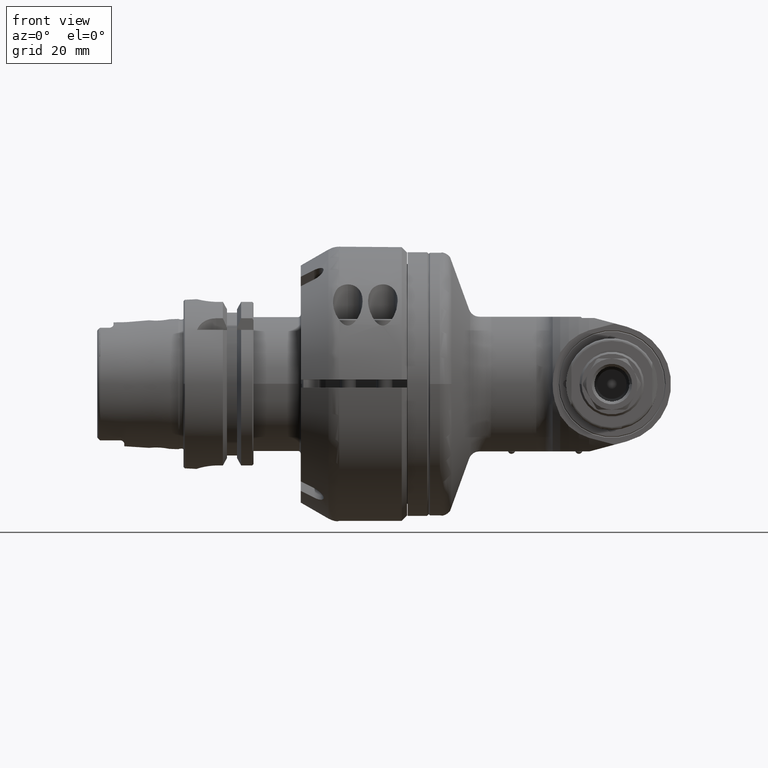
[diagram: clean part render]
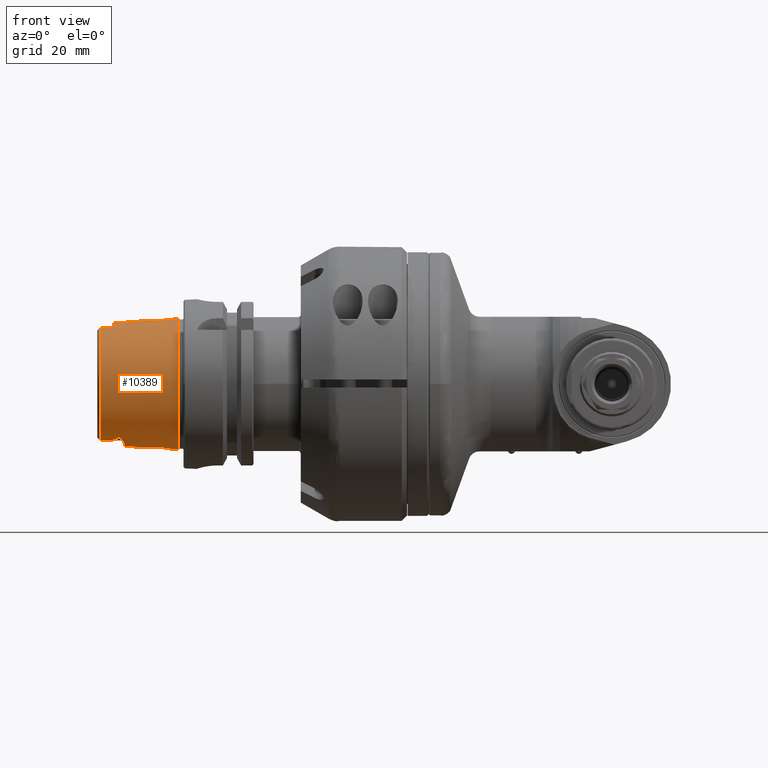
[diagram: same view with one face highlighted and labeled with its STEP entity id]
A machine part, front view. The second image highlights one B-rep face of the part: STEP entity #10389.
In plain terms, the highlighted conical surface has half-angle 2.868 deg.
Its self-contained STEP definition (entity closure, byte-faithful):
#144=B_SPLINE_CURVE_WITH_KNOTS('',3,(#17776,#17777,#17778,#17779,#17780,
#17781,#17782,#17783),.UNSPECIFIED.,.F.,.F.,(4,2,2,4),(1.87852144760714,
1.96332966499537,2.14651647101209,2.20196364531662),.UNSPECIFIED.);
#145=B_SPLINE_CURVE_WITH_KNOTS('',3,(#17785,#17786,#17787,#17788,#17789,
#17790,#17791,#17792,#17793,#17794,#17795,#17796,#17797,#17798),
 .UNSPECIFIED.,.F.,.F.,(4,2,2,2,2,2,4),(0.648088302085367,0.675048238791918,
0.706405860352609,0.74703144233428,0.813706573923411,0.931756672705519,
0.968140813905527),.UNSPECIFIED.);
#146=B_SPLINE_CURVE_WITH_KNOTS('',3,(#17802,#17803,#17804,#17805,#17806,
#17807,#17808,#17809,#17810,#17811,#17812,#17813,#17814,#17815),
 .UNSPECIFIED.,.F.,.F.,(4,2,2,2,2,2,4),(0.250897982794805,0.322899286399055,
0.451677279406565,0.50403853169686,0.537850831836068,0.567600566613743,
0.582022119256568),.UNSPECIFIED.);
#147=B_SPLINE_CURVE_WITH_KNOTS('',3,(#17817,#17818,#17819,#17820,#17821,
#17822,#17823,#17824),.UNSPECIFIED.,.F.,.F.,(4,2,2,4),(1.04367366398559,
1.09912083762025,1.28230764389029,1.36711586171919),.UNSPECIFIED.);
#148=B_SPLINE_CURVE_WITH_KNOTS('',3,(#17828,#17829,#17830,#17831,#17832,
#17833,#17834,#17835,#17836,#17837,#17838,#17839,#17840,#17841,#17842,#17843,
#17844,#17845),.UNSPECIFIED.,.F.,.F.,(4,2,2,2,2,2,2,2,4),(1.62281865268316,
1.63031260903777,1.63780656539237,1.65279447810159,1.71646866782222,1.78014285754286,
1.96332966286606,2.14651646818926,2.20196364304312),.UNSPECIFIED.);
#149=B_SPLINE_CURVE_WITH_KNOTS('',3,(#17851,#17852,#17853,#17854,#17855,
#17856,#17857,#17858,#17859,#17860,#17861,#17862,#17863,#17864,#17865,#17866,
#17867,#17868,#17869),.UNSPECIFIED.,.F.,.F.,(4,2,2,2,2,2,3,2,4),(0.591686858486119,
0.711318405574479,0.753394480811399,0.769620085407919,0.779298074344639,
0.784137068813,0.78897606328136,0.793827590149413,0.796896752134967),
 .UNSPECIFIED.);
#150=B_SPLINE_CURVE_WITH_KNOTS('',3,(#17871,#17872,#17873,#17874,#17875,
#17876,#17877,#17878,#17879,#17880,#17881,#17882),.UNSPECIFIED.,.F.,.F.,
(4,2,2,2,2,4),(-1.35810253273556,-1.33001864996105,-1.27929112227655,-1.22120743999306,
-1.19655389715645,-1.18646391720584),.UNSPECIFIED.);
#151=B_SPLINE_CURVE_WITH_KNOTS('',3,(#17886,#17887,#17888,#17889,#17890,
#17891,#17892,#17893,#17894,#17895),.UNSPECIFIED.,.F.,.F.,(4,2,2,2,4),(-0.500911046831581,
-0.481998817135151,-0.442781745818096,-0.333902719664991,-0.278648797669768),
 .UNSPECIFIED.);
#152=B_SPLINE_CURVE_WITH_KNOTS('',3,(#17897,#17898,#17899,#17900,#17901,
#17902,#17903,#17904,#17905,#17906,#17907,#17908,#17909,#17910,#17911,#17912,
#17913,#17914),.UNSPECIFIED.,.F.,.F.,(4,2,2,2,2,2,2,2,4),(0.386476945536789,
0.389546107522341,0.394397634390394,0.399236628858755,0.404075623327115,
0.413753612263837,0.429979216860358,0.472055292097276,0.591686839185636),
 .UNSPECIFIED.);
#153=B_SPLINE_CURVE_WITH_KNOTS('',3,(#17920,#17921,#17922,#17923,#17924,
#17925,#17926,#17927,#17928,#17929,#17930,#17931,#17932,#17933,#17934,#17935,
#17936,#17937),.UNSPECIFIED.,.F.,.F.,(4,2,2,2,2,2,2,2,4),(1.04367366561104,
1.09912083861657,1.2823076446389,1.46549445066122,1.5291686406059,1.59284283055058,
1.60783074329144,1.61532469966187,1.6228186560323),.UNSPECIFIED.);
#154=B_SPLINE_CURVE_WITH_KNOTS('',3,(#17941,#17942,#17943,#17944,#17945,
#17946,#17947,#17948,#17949,#17950,#17951,#17952,#17953,#17954,#17955,#17956,
#17957,#17958,#17959),.UNSPECIFIED.,.F.,.F.,(4,2,2,2,3,2,2,2,4),(-0.56247523473426,
-0.421758779612593,-0.281042324490925,-0.140521162245463,0.,0.142680728235708,
0.285361456471416,0.427838019281762,0.570314582092107),.UNSPECIFIED.);
#155=B_SPLINE_CURVE_WITH_KNOTS('',3,(#17960,#17961,#17962,#17963,#17964,
#17965,#17966,#17967,#17968,#17969,#17970,#17971,#17972,#17973,#17974,#17975,
#17976,#17977),.UNSPECIFIED.,.F.,.F.,(4,2,2,2,2,2,2,2,4),(0.570314582092107,
0.712791144902453,0.855267707712798,0.997948435948506,1.14062916418421,
1.28115032642968,1.42167148867514,1.56238794379681,1.70310439891847),
 .UNSPECIFIED.);
#156=B_SPLINE_CURVE_WITH_KNOTS('',3,(#17979,#17980,#17981,#17982,#17983,
#17984,#17985,#17986,#17987,#17988,#17989,#17990,#17991,#17992,#17993,#17994,
#17995,#17996,#17997,#17998,#17999,#18000,#18001,#18002,#18003,#18004,#18005,
#18006,#18007,#18008,#18009,#18010,#18011,#18012),.UNSPECIFIED.,.T.,.F.,
(4,2,2,2,2,2,2,2,2,2,2,2,2,2,2,2,4),(-2.26557963365273,-2.12505847140727,
-1.98453730916181,-1.84382085404014,-1.70310439891847,-1.56238794379681,
-1.42167148867514,-1.28115032642968,-1.14062916418421,-0.997948435948507,
-0.855267707712798,-0.712791144902453,-0.570314582092107,-0.427838019281762,
-0.285361456471416,-0.142680728235708,0.),.UNSPECIFIED.);
#381=(
BOUNDED_CURVE()
B_SPLINE_CURVE(2,(#17847,#17848,#17849),.UNSPECIFIED.,.F.,.F.)
B_SPLINE_CURVE_WITH_KNOTS((3,3),(1.86693789051421,2.5252025093279),
 .UNSPECIFIED.)
CURVE()
GEOMETRIC_REPRESENTATION_ITEM()
RATIONAL_B_SPLINE_CURVE((1.02439092202946,1.02616919741191,1.02616919750134))
REPRESENTATION_ITEM('')
);
#382=(
BOUNDED_CURVE()
B_SPLINE_CURVE(2,(#17916,#17917,#17918),.UNSPECIFIED.,.F.,.F.)
B_SPLINE_CURVE_WITH_KNOTS((3,3),(2.52520257553613,3.18346719434885),
 .UNSPECIFIED.)
CURVE()
GEOMETRIC_REPRESENTATION_ITEM()
RATIONAL_B_SPLINE_CURVE((1.02616919750134,1.0261691974119,1.02439092202946))
REPRESENTATION_ITEM('')
);
#495=FACE_BOUND('',#3178,.T.);
#496=FACE_BOUND('',#3179,.T.);
#620=CONICAL_SURFACE('',#11556,23.49739340079,0.0500570901447486);
#1060=LINE('',#17772,#1717);
#1717=VECTOR('',#13825,23.49739340079);
#2501=FACE_OUTER_BOUND('',#3177,.T.);
#3177=EDGE_LOOP('',(#8260,#8261,#8262,#8263,#8264,#8265,#8266,#8267,#8268,
#8269,#8270,#8271,#8272,#8273,#8274,#8275,#8276,#8277,#8278,#8279,#8280));
#3178=EDGE_LOOP('',(#8281,#8282));
#3179=EDGE_LOOP('',(#8283));
#3781=CIRCLE('',#11554,24.22021898401);
#3782=CIRCLE('',#11555,24.22021898401);
#3783=CIRCLE('',#11557,22.77456781756);
#3784=CIRCLE('',#11558,23.01805084955);
#3785=CIRCLE('',#11559,22.77456781756);
#3786=CIRCLE('',#11560,23.21844661614);
#3787=CIRCLE('',#11561,22.77456781756);
#4587=VERTEX_POINT('',#17765);
#4588=VERTEX_POINT('',#17766);
#4589=VERTEX_POINT('',#17771);
#4590=VERTEX_POINT('',#17773);
#4591=VERTEX_POINT('',#17775);
#4592=VERTEX_POINT('',#17784);
#4593=VERTEX_POINT('',#17799);
#4594=VERTEX_POINT('',#17801);
#4595=VERTEX_POINT('',#17816);
#4596=VERTEX_POINT('',#17825);
#4597=VERTEX_POINT('',#17827);
#4598=VERTEX_POINT('',#17846);
#4599=VERTEX_POINT('',#17850);
#4600=VERTEX_POINT('',#17870);
#4601=VERTEX_POINT('',#17883);
#4602=VERTEX_POINT('',#17885);
#4603=VERTEX_POINT('',#17896);
#4604=VERTEX_POINT('',#17915);
#4605=VERTEX_POINT('',#17919);
#4606=VERTEX_POINT('',#17939);
#4607=VERTEX_POINT('',#17940);
#4608=VERTEX_POINT('',#17978);
#5875=EDGE_CURVE('',#4587,#4588,#3781,.T.);
#5876=EDGE_CURVE('',#4588,#4587,#3782,.T.);
#5878=EDGE_CURVE('',#4587,#4589,#1060,.T.);
#5879=EDGE_CURVE('',#4589,#4590,#3783,.T.);
#5880=EDGE_CURVE('',#4591,#4590,#144,.T.);
#5881=EDGE_CURVE('',#4591,#4592,#145,.T.);
#5882=EDGE_CURVE('',#4593,#4592,#3784,.T.);
#5883=EDGE_CURVE('',#4593,#4594,#146,.T.);
#5884=EDGE_CURVE('',#4595,#4594,#147,.T.);
#5885=EDGE_CURVE('',#4596,#4595,#3785,.T.);
#5886=EDGE_CURVE('',#4597,#4596,#148,.T.);
#5887=EDGE_CURVE('',#4598,#4597,#381,.T.);
#5888=EDGE_CURVE('',#4599,#4598,#149,.T.);
#5889=EDGE_CURVE('',#4600,#4599,#150,.T.);
#5890=EDGE_CURVE('',#4601,#4600,#3786,.T.);
#5891=EDGE_CURVE('',#4602,#4601,#151,.T.);
#5892=EDGE_CURVE('',#4603,#4602,#152,.T.);
#5893=EDGE_CURVE('',#4604,#4603,#382,.T.);
#5894=EDGE_CURVE('',#4605,#4604,#153,.T.);
#5895=EDGE_CURVE('',#4605,#4589,#3787,.T.);
#5896=EDGE_CURVE('',#4606,#4607,#154,.T.);
#5897=EDGE_CURVE('',#4607,#4606,#155,.T.);
#5898=EDGE_CURVE('',#4608,#4608,#156,.T.);
#8260=ORIENTED_EDGE('',*,*,#5875,.T.);
#8261=ORIENTED_EDGE('',*,*,#5876,.T.);
#8262=ORIENTED_EDGE('',*,*,#5878,.T.);
#8263=ORIENTED_EDGE('',*,*,#5879,.T.);
#8264=ORIENTED_EDGE('',*,*,#5880,.F.);
#8265=ORIENTED_EDGE('',*,*,#5881,.T.);
#8266=ORIENTED_EDGE('',*,*,#5882,.F.);
#8267=ORIENTED_EDGE('',*,*,#5883,.T.);
#8268=ORIENTED_EDGE('',*,*,#5884,.F.);
#8269=ORIENTED_EDGE('',*,*,#5885,.F.);
#8270=ORIENTED_EDGE('',*,*,#5886,.F.);
#8271=ORIENTED_EDGE('',*,*,#5887,.F.);
#8272=ORIENTED_EDGE('',*,*,#5888,.F.);
#8273=ORIENTED_EDGE('',*,*,#5889,.F.);
#8274=ORIENTED_EDGE('',*,*,#5890,.F.);
#8275=ORIENTED_EDGE('',*,*,#5891,.F.);
#8276=ORIENTED_EDGE('',*,*,#5892,.F.);
#8277=ORIENTED_EDGE('',*,*,#5893,.F.);
#8278=ORIENTED_EDGE('',*,*,#5894,.F.);
#8279=ORIENTED_EDGE('',*,*,#5895,.T.);
#8280=ORIENTED_EDGE('',*,*,#5878,.F.);
#8281=ORIENTED_EDGE('',*,*,#5896,.T.);
#8282=ORIENTED_EDGE('',*,*,#5897,.T.);
#8283=ORIENTED_EDGE('',*,*,#5898,.T.);
#10389=ADVANCED_FACE('',(#2501,#495,#496),#620,.T.);
#11554=AXIS2_PLACEMENT_3D('',#17767,#13818,#13819);
#11555=AXIS2_PLACEMENT_3D('',#17768,#13820,#13821);
#11556=AXIS2_PLACEMENT_3D('',#17770,#13823,#13824);
#11557=AXIS2_PLACEMENT_3D('',#17774,#13826,#13827);
#11558=AXIS2_PLACEMENT_3D('',#17800,#13828,#13829);
#11559=AXIS2_PLACEMENT_3D('',#17826,#13830,#13831);
#11560=AXIS2_PLACEMENT_3D('',#17884,#13832,#13833);
#11561=AXIS2_PLACEMENT_3D('',#17938,#13834,#13835);
#13818=DIRECTION('center_axis',(0.,0.,1.));
#13819=DIRECTION('ref_axis',(-0.707106781186547,-0.707106781186547,0.));
#13820=DIRECTION('center_axis',(0.,0.,1.));
#13821=DIRECTION('ref_axis',(-0.707106781186547,-0.707106781186547,0.));
#13823=DIRECTION('center_axis',(0.,0.,-1.));
#13824=DIRECTION('ref_axis',(0.707106781186548,0.707106781186548,0.));
#13825=DIRECTION('',(0.0353809278297194,0.0353809278297194,0.998747405449354));
#13826=DIRECTION('center_axis',(0.,0.,-1.));
#13827=DIRECTION('ref_axis',(-0.707106781186547,-0.707106781186547,0.));
#13828=DIRECTION('center_axis',(0.,0.,1.));
#13829=DIRECTION('ref_axis',(0.310247952795186,0.950655672568357,0.));
#13830=DIRECTION('center_axis',(0.,0.,1.));
#13831=DIRECTION('ref_axis',(1.,0.,0.));
#13832=DIRECTION('center_axis',(0.,0.,1.));
#13833=DIRECTION('ref_axis',(-0.318847860778003,-0.94780590928591,0.));
#13834=DIRECTION('center_axis',(0.,0.,-1.));
#13835=DIRECTION('ref_axis',(-0.707106781186547,-0.707106781186547,0.));
#17765=CARTESIAN_POINT('',(-17.12628108542,-17.12628108542,52.99912114642));
#17766=CARTESIAN_POINT('',(17.1262810854204,17.1262810854204,52.9991211464186));
#17767=CARTESIAN_POINT('Origin',(0.,0.,52.99912114642));
#17768=CARTESIAN_POINT('Origin',(0.,0.,52.99912114642));
#17770=CARTESIAN_POINT('Origin',(0.,0.,67.427082286));
#17771=CARTESIAN_POINT('',(-16.1040513423943,-16.1040513423943,81.8550434255811));
#17772=CARTESIAN_POINT('',(-16.6151662139066,-16.6151662139066,67.427082286));
#17773=CARTESIAN_POINT('',(-9.117654363463,20.86981835535,81.85504342558));
#17774=CARTESIAN_POINT('Origin',(0.,0.,81.85504342558));
#17775=CARTESIAN_POINT('',(-9.610775788882,20.83290092553,78.495));
#17776=CARTESIAN_POINT('Ctrl Pts',(-9.61077578889373,20.8329009255282,78.4950000000022));
#17777=CARTESIAN_POINT('Ctrl Pts',(-9.55850786932113,20.8413724806425,78.7784904282741));
#17778=CARTESIAN_POINT('Ctrl Pts',(-9.50986699995181,20.8478073405863,79.0652482027057));
#17779=CARTESIAN_POINT('Ctrl Pts',(-9.36366646758571,20.863821774484,79.9801565585002));
#17780=CARTESIAN_POINT('Ctrl Pts',(-9.27459532051356,20.8685085877053,80.6183430761416));
#17781=CARTESIAN_POINT('Ctrl Pts',(-9.16631082824764,20.8700624475187,81.4611270539247));
#17782=CARTESIAN_POINT('Ctrl Pts',(-9.14172559906328,20.8700887194267,81.6577434629838));
#17783=CARTESIAN_POINT('Ctrl Pts',(-9.11765436347179,20.8698183553477,81.8550434255811));
#17784=CARTESIAN_POINT('',(-7.141303153407,21.88224061159,76.995));
#17785=CARTESIAN_POINT('Ctrl Pts',(-9.61077578889373,20.8329009255283,78.4950000000022));
#17786=CARTESIAN_POINT('Ctrl Pts',(-9.61973394568024,20.8314489924963,78.4464128030236));
#17787=CARTESIAN_POINT('Ctrl Pts',(-9.62073721834895,20.8336401790428,78.3983101102748));
#17788=CARTESIAN_POINT('Ctrl Pts',(-9.60554521151347,20.8464278881812,78.2935608657479));
#17789=CARTESIAN_POINT('Ctrl Pts',(-9.58707640182997,20.8578578636761,78.240706969117));
#17790=CARTESIAN_POINT('Ctrl Pts',(-9.53199317457096,20.8893183107881,78.1277996840116));
#17791=CARTESIAN_POINT('Ctrl Pts',(-9.48448009125569,20.9150585072333,78.0552687868475));
#17792=CARTESIAN_POINT('Ctrl Pts',(-9.28874691392544,21.0151373924235,77.8336478720117));
#17793=CARTESIAN_POINT('Ctrl Pts',(-9.11993002449012,21.0971469157375,77.693710144837));
#17794=CARTESIAN_POINT('Ctrl Pts',(-8.60152235861784,21.3346001590644,77.3471930600794));
#17795=CARTESIAN_POINT('Ctrl Pts',(-8.1402860872223,21.5309104117372,77.1244955955363));
#17796=CARTESIAN_POINT('Ctrl Pts',(-7.45228581516806,21.77828244444,77.0080869359226));
#17797=CARTESIAN_POINT('Ctrl Pts',(-7.29415485282921,21.8323572224781,76.9949999999997));
#17798=CARTESIAN_POINT('Ctrl Pts',(-7.14130315340725,21.8822406115908,76.995));
#17799=CARTESIAN_POINT('',(7.141303153408,21.88224061159,76.995));
#17800=CARTESIAN_POINT('Origin',(0.,0.,76.995));
#17801=CARTESIAN_POINT('',(9.610775788879,20.83290092553,78.49500000001));
#17802=CARTESIAN_POINT('Ctrl Pts',(7.14130315340816,21.8822406115905,76.995));
#17803=CARTESIAN_POINT('Ctrl Pts',(7.41363694008592,21.7933640580372,76.9949999999997));
#17804=CARTESIAN_POINT('Ctrl Pts',(7.68824455746598,21.6957996581471,77.0366121624606));
#17805=CARTESIAN_POINT('Ctrl Pts',(8.43441100564515,21.409444593117,77.2507930771049));
#17806=CARTESIAN_POINT('Ctrl Pts',(8.84932399272185,21.2243799959674,77.4905235026044));
#17807=CARTESIAN_POINT('Ctrl Pts',(9.24395926600557,21.0365866986543,77.8012372911228));
#17808=CARTESIAN_POINT('Ctrl Pts',(9.36659326279733,20.9761032068553,77.9116305840195));
#17809=CARTESIAN_POINT('Ctrl Pts',(9.52178759584923,20.8950552401853,78.109619990408));
#17810=CARTESIAN_POINT('Ctrl Pts',(9.55958934574004,20.8739760220774,78.177079648045));
#17811=CARTESIAN_POINT('Ctrl Pts',(9.60408350993952,20.8472940080879,78.290275231779));
#17812=CARTESIAN_POINT('Ctrl Pts',(9.61743794135666,20.8380106848694,78.3466771998469));
#17813=CARTESIAN_POINT('Ctrl Pts',(9.61869765129533,20.8324598638865,78.4367327814785));
#17814=CARTESIAN_POINT('Ctrl Pts',(9.61613593125912,20.8320321566572,78.4659276920366));
#17815=CARTESIAN_POINT('Ctrl Pts',(9.61077578889185,20.8329009255285,78.4950000000124));
#17816=CARTESIAN_POINT('',(9.117654363463,20.86981835535,81.85504342558));
#17817=CARTESIAN_POINT('Ctrl Pts',(9.11765436347179,20.8698183553477,81.8550434255811));
#17818=CARTESIAN_POINT('Ctrl Pts',(9.1417255987706,20.8700887194234,81.6577434653827));
#17819=CARTESIAN_POINT('Ctrl Pts',(9.16631082764981,20.8700624475193,81.4611270587064));
#17820=CARTESIAN_POINT('Ctrl Pts',(9.27459531965703,20.8685085877441,80.6183430823798));
#17821=CARTESIAN_POINT('Ctrl Pts',(9.36366646679598,20.8638217745453,79.9801565638432));
#17822=CARTESIAN_POINT('Ctrl Pts',(9.50986699945028,20.8478073406529,79.0652482056583));
#17823=CARTESIAN_POINT('Ctrl Pts',(9.55850786905097,20.8413724806862,78.77849042974));
#17824=CARTESIAN_POINT('Ctrl Pts',(9.61077578889186,20.8329009255285,78.4950000000124));
#17825=CARTESIAN_POINT('',(9.117654363498,-20.86981835533,81.85504342558));
#17826=CARTESIAN_POINT('Origin',(0.,0.,81.85504342558));
#17827=CARTESIAN_POINT('',(10.45563865919,-20.55704259638,76.09328716012));
#17828=CARTESIAN_POINT('Ctrl Pts',(10.4556386714692,-20.5570425901345,76.0932871601816));
#17829=CARTESIAN_POINT('Ctrl Pts',(10.433373271905,-20.5683671261879,76.0932871622689));
#17830=CARTESIAN_POINT('Ctrl Pts',(10.4121101512896,-20.5788186542378,76.0989425576007));
#17831=CARTESIAN_POINT('Ctrl Pts',(10.3716348829625,-20.5981622584297,76.118292714809));
#17832=CARTESIAN_POINT('Ctrl Pts',(10.3524152746639,-20.6070594656734,76.1319667330902));
#17833=CARTESIAN_POINT('Ctrl Pts',(10.2980927518617,-20.6315611276163,76.1806691356942));
#17834=CARTESIAN_POINT('Ctrl Pts',(10.2662245706467,-20.6450434356398,76.2231272565501));
#17835=CARTESIAN_POINT('Ctrl Pts',(10.1277106806721,-20.7016700091884,76.4384406302078));
#17836=CARTESIAN_POINT('Ctrl Pts',(10.0539998399404,-20.7253784620132,76.653216249338));
#17837=CARTESIAN_POINT('Ctrl Pts',(9.91728957146815,-20.7668254275143,77.0912510935108));
#17838=CARTESIAN_POINT('Ctrl Pts',(9.85990522650072,-20.7815789717773,77.3165198345349));
#17839=CARTESIAN_POINT('Ctrl Pts',(9.67204980871616,-20.8259087989342,78.1164324681181));
#17840=CARTESIAN_POINT('Ctrl Pts',(9.56353591522435,-20.8419285842929,78.7293934819676));
#17841=CARTESIAN_POINT('Ctrl Pts',(9.36366646838923,-20.8638217744217,79.9801565530635));
#17842=CARTESIAN_POINT('Ctrl Pts',(9.27459532138512,-20.8685085876657,80.6183430697941));
#17843=CARTESIAN_POINT('Ctrl Pts',(9.16631082885614,-20.8700624475181,81.4611270490578));
#17844=CARTESIAN_POINT('Ctrl Pts',(9.14172559936142,-20.87008871943,81.6577434605401));
#17845=CARTESIAN_POINT('Ctrl Pts',(9.11765436347231,-20.8698183553477,81.8550434255769));
#17846=CARTESIAN_POINT('',(12.17012447178,-19.685027866,74.495));
#17847=CARTESIAN_POINT('Ctrl Pts',(12.1701244718009,-19.6850278659878,74.495000000015));
#17848=CARTESIAN_POINT('Ctrl Pts',(11.3113960268442,-20.1217907997497,76.0932870799412));
#17849=CARTESIAN_POINT('Ctrl Pts',(10.4556386592447,-20.5570425963522,76.0932871601786));
#17850=CARTESIAN_POINT('',(10.50463704262,-20.65337930986,73.93592683567));
#17851=CARTESIAN_POINT('Ctrl Pts',(10.5046369566053,-20.6533793536115,73.9359268356607));
#17852=CARTESIAN_POINT('Ctrl Pts',(10.8600759507545,-20.4725974305277,73.9359268403847));
#17853=CARTESIAN_POINT('Ctrl Pts',(11.2787331001345,-20.2429928414845,73.9674745516439));
#17854=CARTESIAN_POINT('Ctrl Pts',(11.7324566113102,-19.9736961951904,74.0777592252347));
#17855=CARTESIAN_POINT('Ctrl Pts',(11.8712980961836,-19.8889135428888,74.1209018297978));
#17856=CARTESIAN_POINT('Ctrl Pts',(12.0215908841504,-19.7935089562315,74.1988612235576));
#17857=CARTESIAN_POINT('Ctrl Pts',(12.0699511150093,-19.7622825990608,74.2288366634653));
#17858=CARTESIAN_POINT('Ctrl Pts',(12.1278552591121,-19.7237601065718,74.28000932448));
#17859=CARTESIAN_POINT('Ctrl Pts',(12.1498329028668,-19.7088419471517,74.3034554181834));
#17860=CARTESIAN_POINT('Ctrl Pts',(12.1738756749758,-19.691608797045,74.3439408650348));
#17861=CARTESIAN_POINT('Ctrl Pts',(12.1804656176304,-19.686685553039,74.3582973863252));
#17862=CARTESIAN_POINT('Ctrl Pts',(12.189279508972,-19.6794566962155,74.3883818778479));
#17863=CARTESIAN_POINT('Ctrl Pts',(12.1915238238229,-19.6771391685607,74.4041010131458));
#17864=CARTESIAN_POINT('Ctrl Pts',(12.1910987489841,-19.6764530970834,74.4202107911376));
#17865=CARTESIAN_POINT('Ctrl Pts',(12.1906725732538,-19.6757652487655,74.4363622914702));
#17866=CARTESIAN_POINT('Ctrl Pts',(12.1875860130507,-19.6767494293033,74.452121314436));
#17867=CARTESIAN_POINT('Ctrl Pts',(12.1790827163535,-19.6805617300193,74.4767582736719));
#17868=CARTESIAN_POINT('Ctrl Pts',(12.1749388286616,-19.6825792075815,74.4860393973536));
#17869=CARTESIAN_POINT('Ctrl Pts',(12.1701244717913,-19.6850278659941,74.4950000000077));
#17870=CARTESIAN_POINT('',(7.403152034143,-22.00658090721,72.995));
#17871=CARTESIAN_POINT('Ctrl Pts',(7.4031520341448,-22.0065809072154,72.995));
#17872=CARTESIAN_POINT('Ctrl Pts',(7.58729074979959,-21.9446354867472,72.9949999999998));
#17873=CARTESIAN_POINT('Ctrl Pts',(7.79894073569067,-21.8700373454034,73.0119514990181));
#17874=CARTESIAN_POINT('Ctrl Pts',(8.46885044146736,-21.6158859211318,73.1415909625734));
#17875=CARTESIAN_POINT('Ctrl Pts',(8.84986186883549,-21.452305424662,73.2927735163922));
#17876=CARTESIAN_POINT('Ctrl Pts',(9.52003982973994,-21.1477208781621,73.5943097197334));
#17877=CARTESIAN_POINT('Ctrl Pts',(9.8164809402961,-21.0011530218963,73.7555258519646));
#17878=CARTESIAN_POINT('Ctrl Pts',(10.1838806620508,-20.816382381822,73.8891050834379));
#17879=CARTESIAN_POINT('Ctrl Pts',(10.284361716861,-20.7653534048573,73.9160616337908));
#17880=CARTESIAN_POINT('Ctrl Pts',(10.4242598914347,-20.6942562737177,73.9333926062766));
#17881=CARTESIAN_POINT('Ctrl Pts',(10.4644033621004,-20.6738427993982,73.9359268351215));
#17882=CARTESIAN_POINT('Ctrl Pts',(10.5046370426213,-20.6533793098626,73.9359268356565));
#17883=CARTESIAN_POINT('',(-7.403152034143,-22.00658090721,72.995));
#17884=CARTESIAN_POINT('Origin',(0.,0.,72.995));
#17885=CARTESIAN_POINT('',(-10.50463704262,-20.65337930986,73.93592683567));
#17886=CARTESIAN_POINT('Ctrl Pts',(-10.5046370426213,-20.6533793098626,
73.9359268356565));
#17887=CARTESIAN_POINT('Ctrl Pts',(-10.4428760007516,-20.6847919576156,
73.9359268348353));
#17888=CARTESIAN_POINT('Ctrl Pts',(-10.3818148893931,-20.7158427666053,
73.929945219954));
#17889=CARTESIAN_POINT('Ctrl Pts',(-10.1907910100508,-20.8128316240175,
73.8946590030937));
#17890=CARTESIAN_POINT('Ctrl Pts',(-10.0580924634214,-20.8800772428558,
73.8474551147508));
#17891=CARTESIAN_POINT('Ctrl Pts',(-9.49261363253437,-21.1610245006452,
73.6027685141787));
#17892=CARTESIAN_POINT('Ctrl Pts',(-8.94733733032288,-21.4217726730621,
73.2850020362254));
#17893=CARTESIAN_POINT('Ctrl Pts',(-7.93109170591475,-21.8234662449697,
73.0232306177787));
#17894=CARTESIAN_POINT('Ctrl Pts',(-7.64156803444037,-21.9263762672941,
72.9949999999998));
#17895=CARTESIAN_POINT('Ctrl Pts',(-7.4031520341448,-22.0065809072154,72.995));
#17896=CARTESIAN_POINT('',(-12.17012447178,-19.685027866,74.495));
#17897=CARTESIAN_POINT('Ctrl Pts',(-12.1701244717913,-19.6850278659941,
74.4950000000077));
#17898=CARTESIAN_POINT('Ctrl Pts',(-12.1749388286615,-19.6825792075816,
74.4860393973536));
#17899=CARTESIAN_POINT('Ctrl Pts',(-12.1790827163535,-19.6805617300192,
74.4767582736719));
#17900=CARTESIAN_POINT('Ctrl Pts',(-12.1875860130507,-19.6767494293032,
74.452121314436));
#17901=CARTESIAN_POINT('Ctrl Pts',(-12.1906725732538,-19.6757652487655,
74.4363622914702));
#17902=CARTESIAN_POINT('Ctrl Pts',(-12.1915238238229,-19.6771391685607,
74.4041010131458));
#17903=CARTESIAN_POINT('Ctrl Pts',(-12.189279508972,-19.6794566962155,74.3883818778479));
#17904=CARTESIAN_POINT('Ctrl Pts',(-12.1804656176304,-19.686685553039,74.3582973863253));
#17905=CARTESIAN_POINT('Ctrl Pts',(-12.1738756749759,-19.691608797045,74.3439408650348));
#17906=CARTESIAN_POINT('Ctrl Pts',(-12.1498329028668,-19.7088419471517,
74.3034554181834));
#17907=CARTESIAN_POINT('Ctrl Pts',(-12.127855259112,-19.7237601065718,74.28000932448));
#17908=CARTESIAN_POINT('Ctrl Pts',(-12.0699511150093,-19.7622825990608,
74.2288366634653));
#17909=CARTESIAN_POINT('Ctrl Pts',(-12.0215908841504,-19.7935089562315,
74.1988612235575));
#17910=CARTESIAN_POINT('Ctrl Pts',(-11.8712980961836,-19.8889135428888,
74.1209018297977));
#17911=CARTESIAN_POINT('Ctrl Pts',(-11.7324566113102,-19.9736961951904,
74.0777592252347));
#17912=CARTESIAN_POINT('Ctrl Pts',(-11.2787331001345,-20.2429928414845,
73.9674745516439));
#17913=CARTESIAN_POINT('Ctrl Pts',(-10.8600759516147,-20.472597432219,73.9359268356607));
#17914=CARTESIAN_POINT('Ctrl Pts',(-10.5046369566053,-20.6533793536115,
73.9359268356607));
#17915=CARTESIAN_POINT('',(-10.45563865919,-20.55704259638,76.09328716012));
#17916=CARTESIAN_POINT('Ctrl Pts',(-10.4556386592471,-20.557042596351,76.0932871601786));
#17917=CARTESIAN_POINT('Ctrl Pts',(-11.3113960268454,-20.121790799749,76.0932870799389));
#17918=CARTESIAN_POINT('Ctrl Pts',(-12.1701244718009,-19.6850278659878,
74.4950000000151));
#17919=CARTESIAN_POINT('',(-9.117654363463,-20.86981835535,81.85504342558));
#17920=CARTESIAN_POINT('Ctrl Pts',(-9.1176543634718,-20.8698183553477,81.855043425581));
#17921=CARTESIAN_POINT('Ctrl Pts',(-9.14172559855336,-20.8700887194209,
81.6577434671633));
#17922=CARTESIAN_POINT('Ctrl Pts',(-9.16631082720605,-20.8700624475197,
81.4611270622557));
#17923=CARTESIAN_POINT('Ctrl Pts',(-9.27459531902123,-20.8685085877729,
80.6183430870102));
#17924=CARTESIAN_POINT('Ctrl Pts',(-9.36366646620984,-20.8638217745908,
79.9801565678092));
#17925=CARTESIAN_POINT('Ctrl Pts',(-9.56353591346666,-20.8419285845549,
78.7293934918597));
#17926=CARTESIAN_POINT('Ctrl Pts',(-9.67204980718885,-20.8259087992307,
78.1164324756268));
#17927=CARTESIAN_POINT('Ctrl Pts',(-9.85990522537639,-20.7815789720648,
77.3165198389731));
#17928=CARTESIAN_POINT('Ctrl Pts',(-9.91728957045448,-20.7668254277979,
77.0912510971303));
#17929=CARTESIAN_POINT('Ctrl Pts',(-10.0539998392007,-20.7253784622613,
76.653216251336));
#17930=CARTESIAN_POINT('Ctrl Pts',(-10.127710680064,-20.7016700094214,76.4384406313955));
#17931=CARTESIAN_POINT('Ctrl Pts',(-10.266224570361,-20.6450434357602,76.2231272569369));
#17932=CARTESIAN_POINT('Ctrl Pts',(-10.2980927516157,-20.6315611277239,
76.1806691359679));
#17933=CARTESIAN_POINT('Ctrl Pts',(-10.3524152744901,-20.6070594657535,
76.1319667332192));
#17934=CARTESIAN_POINT('Ctrl Pts',(-10.3716348828157,-20.5981622584988,
76.1182927148965));
#17935=CARTESIAN_POINT('Ctrl Pts',(-10.4121101512061,-20.5788186542789,
76.0989425576234));
#17936=CARTESIAN_POINT('Ctrl Pts',(-10.4333732719121,-20.5683671263183,
76.0932871601816));
#17937=CARTESIAN_POINT('Ctrl Pts',(-10.4556386714692,-20.5570425901345,
76.0932871601816));
#17938=CARTESIAN_POINT('Origin',(0.,0.,81.85504342558));
#17939=CARTESIAN_POINT('',(0.,-23.68186182637,63.745));
#17940=CARTESIAN_POINT('',(4.59242549680257E-16,-24.0576038887331,56.245));
#17941=CARTESIAN_POINT('Ctrl Pts',(-1.11022302462516E-15,-23.6818618263774,
63.745));
#17942=CARTESIAN_POINT('Ctrl Pts',(0.469054850405556,-23.6818618263774,
63.745));
#17943=CARTESIAN_POINT('Ctrl Pts',(0.969264895238196,-23.6711804503687,
63.6516215303589));
#17944=CARTESIAN_POINT('Ctrl Pts',(1.88978114724752,-23.6345973217103,63.272053954328));
#17945=CARTESIAN_POINT('Ctrl Pts',(2.31012703498402,-23.6094750319828,62.9858863561182));
#17946=CARTESIAN_POINT('Ctrl Pts',(2.97462220634907,-23.5683046058624,62.3259014900085));
#17947=CARTESIAN_POINT('Ctrl Pts',(3.2635247030736,-23.5496143871783,61.9079130783974));
#17948=CARTESIAN_POINT('Ctrl Pts',(3.64932097112701,-23.5393999048604,60.9911356810231));
#17949=CARTESIAN_POINT('Ctrl Pts',(3.74620169322924,-23.5487000186239,60.4923322043523));
#17950=CARTESIAN_POINT('Ctrl Pts',(3.74988384644156,-23.5718461085892,60.024515050341));
#17951=CARTESIAN_POINT('Ctrl Pts',(3.75362258794793,-23.5953479137215,59.5495083598975));
#17952=CARTESIAN_POINT('Ctrl Pts',(3.66191293850585,-23.636207974791,59.0436113203454));
#17953=CARTESIAN_POINT('Ctrl Pts',(3.28250562870907,-23.738916568537,58.1135366250423));
#17954=CARTESIAN_POINT('Ctrl Pts',(2.99487058324756,-23.7999226154427,57.6892405861678));
#17955=CARTESIAN_POINT('Ctrl Pts',(2.32973588252695,-23.9079449341569,57.0188500581351));
#17956=CARTESIAN_POINT('Ctrl Pts',(1.90776874445894,-23.9620973119612,56.7276842310968));
#17957=CARTESIAN_POINT('Ctrl Pts',(0.98040819673589,-24.0373189681924,56.3407239031291));
#17958=CARTESIAN_POINT('Ctrl Pts',(0.474921876034486,-24.0576038887331,
56.245));
#17959=CARTESIAN_POINT('Ctrl Pts',(6.93889390390723E-16,-24.0576038887331,
56.245));
#17960=CARTESIAN_POINT('Ctrl Pts',(0.,-24.0576038887331,56.245));
#17961=CARTESIAN_POINT('Ctrl Pts',(-0.474921876034485,-24.0576038887331,
56.245));
#17962=CARTESIAN_POINT('Ctrl Pts',(-0.980408196735887,-24.0373189681924,
56.3407239031291));
#17963=CARTESIAN_POINT('Ctrl Pts',(-1.90776874445894,-23.9620973119612,
56.7276842310968));
#17964=CARTESIAN_POINT('Ctrl Pts',(-2.32973588252695,-23.9079449341569,
57.0188500581351));
#17965=CARTESIAN_POINT('Ctrl Pts',(-2.99487058324756,-23.7999226154427,
57.6892405861678));
#17966=CARTESIAN_POINT('Ctrl Pts',(-3.28250562870908,-23.738916568537,58.1135366250423));
#17967=CARTESIAN_POINT('Ctrl Pts',(-3.66191293850586,-23.6362079747911,
59.0436113203454));
#17968=CARTESIAN_POINT('Ctrl Pts',(-3.75362258794793,-23.5953479137215,
59.5495083598975));
#17969=CARTESIAN_POINT('Ctrl Pts',(-3.74620169322924,-23.5487000186239,
60.4923322043523));
#17970=CARTESIAN_POINT('Ctrl Pts',(-3.64932097112701,-23.5393999048604,
60.9911356810231));
#17971=CARTESIAN_POINT('Ctrl Pts',(-3.2635247030736,-23.5496143871783,61.9079130783974));
#17972=CARTESIAN_POINT('Ctrl Pts',(-2.97462220634907,-23.5683046058624,
62.3259014900085));
#17973=CARTESIAN_POINT('Ctrl Pts',(-2.31012703498402,-23.6094750319828,
62.9858863561182));
#17974=CARTESIAN_POINT('Ctrl Pts',(-1.88978114724752,-23.6345973217103,
63.272053954328));
#17975=CARTESIAN_POINT('Ctrl Pts',(-0.9692648952382,-23.6711804503687,63.6516215303589));
#17976=CARTESIAN_POINT('Ctrl Pts',(-0.469054850405557,-23.6818618263774,
63.745));
#17977=CARTESIAN_POINT('Ctrl Pts',(-9.71445146547012E-16,-23.6818618263774,
63.745));
#17978=CARTESIAN_POINT('',(0.,24.05760388874,56.24499999999));
#17979=CARTESIAN_POINT('Ctrl Pts',(3.74988384644156,23.5718461085892,60.024515050341));
#17980=CARTESIAN_POINT('Ctrl Pts',(3.74620169322924,23.5487000186238,60.4923322043523));
#17981=CARTESIAN_POINT('Ctrl Pts',(3.64932097112701,23.5393999048604,60.9911356810231));
#17982=CARTESIAN_POINT('Ctrl Pts',(3.26352470307359,23.5496143871783,61.9079130783974));
#17983=CARTESIAN_POINT('Ctrl Pts',(2.97462220634907,23.5683046058624,62.3259014900085));
#17984=CARTESIAN_POINT('Ctrl Pts',(2.31012703498402,23.6094750319828,62.9858863561182));
#17985=CARTESIAN_POINT('Ctrl Pts',(1.88978114724752,23.6345973217103,63.272053954328));
#17986=CARTESIAN_POINT('Ctrl Pts',(0.969264895238196,23.6711804503687,63.6516215303589));
#17987=CARTESIAN_POINT('Ctrl Pts',(0.469054850405556,23.6818618263774,63.745));
#17988=CARTESIAN_POINT('Ctrl Pts',(-0.469054850405558,23.6818618263774,
63.745));
#17989=CARTESIAN_POINT('Ctrl Pts',(-0.969264895238197,23.6711804503687,
63.6516215303589));
#17990=CARTESIAN_POINT('Ctrl Pts',(-1.88978114724752,23.6345973217103,63.272053954328));
#17991=CARTESIAN_POINT('Ctrl Pts',(-2.31012703498402,23.6094750319828,62.9858863561182));
#17992=CARTESIAN_POINT('Ctrl Pts',(-2.97462220634907,23.5683046058624,62.3259014900085));
#17993=CARTESIAN_POINT('Ctrl Pts',(-3.2635247030736,23.5496143871783,61.9079130783974));
#17994=CARTESIAN_POINT('Ctrl Pts',(-3.64932097112701,23.5393999048604,60.9911356810231));
#17995=CARTESIAN_POINT('Ctrl Pts',(-3.74620169322924,23.5487000186239,60.4923322043523));
#17996=CARTESIAN_POINT('Ctrl Pts',(-3.75362258794793,23.5953479137215,59.5495083598975));
#17997=CARTESIAN_POINT('Ctrl Pts',(-3.66191293850585,23.636207974791,59.0436113203454));
#17998=CARTESIAN_POINT('Ctrl Pts',(-3.28250562870908,23.738916568537,58.1135366250423));
#17999=CARTESIAN_POINT('Ctrl Pts',(-2.99487058324756,23.7999226154427,57.6892405861678));
#18000=CARTESIAN_POINT('Ctrl Pts',(-2.32973588252695,23.9079449341569,57.0188500581351));
#18001=CARTESIAN_POINT('Ctrl Pts',(-1.90776874445894,23.9620973119612,56.7276842310968));
#18002=CARTESIAN_POINT('Ctrl Pts',(-0.980408196735887,24.0373189681924,
56.3407239031291));
#18003=CARTESIAN_POINT('Ctrl Pts',(-0.474921876034485,24.0576038887331,
56.245));
#18004=CARTESIAN_POINT('Ctrl Pts',(0.474921876034485,24.0576038887331,56.245));
#18005=CARTESIAN_POINT('Ctrl Pts',(0.980408196735889,24.0373189681924,56.3407239031291));
#18006=CARTESIAN_POINT('Ctrl Pts',(1.90776874445894,23.9620973119612,56.7276842310968));
#18007=CARTESIAN_POINT('Ctrl Pts',(2.32973588252695,23.9079449341569,57.0188500581351));
#18008=CARTESIAN_POINT('Ctrl Pts',(2.99487058324756,23.7999226154427,57.6892405861678));
#18009=CARTESIAN_POINT('Ctrl Pts',(3.28250562870908,23.738916568537,58.1135366250423));
#18010=CARTESIAN_POINT('Ctrl Pts',(3.66191293850585,23.636207974791,59.0436113203454));
#18011=CARTESIAN_POINT('Ctrl Pts',(3.75362258794793,23.5953479137215,59.5495083598975));
#18012=CARTESIAN_POINT('Ctrl Pts',(3.74988384644156,23.5718461085892,60.024515050341));